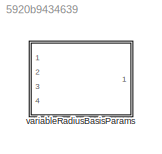
MODEL slx_5920b9434639
KIND library
CONFIG AbsTol = auto
CONFIG EnableMultiTasking = off
CONFIG FixedStep = auto
CONFIG MaxStep = auto
CONFIG MinStep = auto
CONFIG RelTol = 1e-3
CONFIG SampleTimeConstraint = Unconstrained
CONFIG SolverName = VariableStepAuto
CONFIG StartTime = 0.0
CONFIG StopTime = 10.0
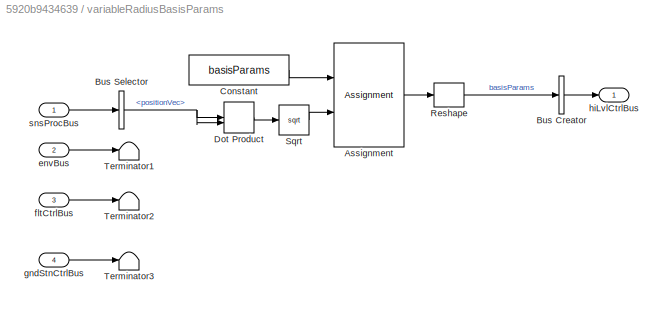
BLOCK [SubSystem] variableRadiusBasisParams
  InitFcn = initializeBussesFromBlock(gcb)
  LoadFcn = initializeBussesFromBlock(gcb)
  Ports = [4, 1]
  RequestExecContextInheritance = off
  StartFcn = initializeBussesFromBlock(gcb)
BLOCK [Assignment] variableRadiusBasisParams/Assignment
  DiagnosticForDimensions = Warning
  IndexOptions = Index vector (dialog)
  Indices = numel(basisParams)
  OutputSizes = 1
  Ports = [2, 1]
BLOCK [BusCreator] variableRadiusBasisParams/Bus Creator
  DisplayOption = bar
  InheritFromInputs = on
  Inputs = 1
  OutDataTypeStr = Bus: hiLvlCtrlBus
  Ports = [1, 1]
BLOCK [BusSelector] variableRadiusBasisParams/Bus Selector
  OutputSignals = positionVec
  Ports = [1, 1]
BLOCK [Constant] variableRadiusBasisParams/Constant
  Value = basisParams
BLOCK [DotProduct] variableRadiusBasisParams/Dot Product
  OutDataTypeStr = Inherit: Inherit via internal rule
BLOCK [Reshape] variableRadiusBasisParams/Reshape
  OutputDimensionality = Column vector (2-D)
  Ports = [1, 1]
BLOCK [Sqrt] variableRadiusBasisParams/Sqrt
BLOCK [Terminator] variableRadiusBasisParams/Terminator1
BLOCK [Terminator] variableRadiusBasisParams/Terminator2
BLOCK [Terminator] variableRadiusBasisParams/Terminator3
BLOCK [Inport] variableRadiusBasisParams/envBus
  OutDataTypeStr = Bus: envBus
  Port = 2
BLOCK [Inport] variableRadiusBasisParams/fltCtrlBus
  OutDataTypeStr = Bus: fltCtrlBus
  Port = 3
BLOCK [Inport] variableRadiusBasisParams/gndStnCtrlBus
  OutDataTypeStr = Bus: gndStnCtrlBus
  Port = 4
BLOCK [Outport] variableRadiusBasisParams/hiLvlCtrlBus
  OutDataTypeStr = Bus: hiLvlCtrlBus
  VectorParamsAs1DForOutWhenUnconnected = off
BLOCK [Inport] variableRadiusBasisParams/snsProcBus
  OutDataTypeStr = Bus: sensorsProcessingBus
LINE variableRadiusBasisParams/Assignment:1 -> variableRadiusBasisParams/Reshape:1
LINE variableRadiusBasisParams/Bus Creator:1 -> variableRadiusBasisParams/hiLvlCtrlBus:1
NET variableRadiusBasisParams/Bus Selector:1 -> variableRadiusBasisParams/Dot Product:1, variableRadiusBasisParams/Dot Product:2
LINE variableRadiusBasisParams/Constant:1 -> variableRadiusBasisParams/Assignment:1
LINE variableRadiusBasisParams/Dot Product:1 -> variableRadiusBasisParams/Sqrt:1
LINE variableRadiusBasisParams/Reshape:1 -> variableRadiusBasisParams/Bus Creator:1
LINE variableRadiusBasisParams/Sqrt:1 -> variableRadiusBasisParams/Assignment:2
LINE variableRadiusBasisParams/envBus:1 -> variableRadiusBasisParams/Terminator1:1
LINE variableRadiusBasisParams/fltCtrlBus:1 -> variableRadiusBasisParams/Terminator2:1
LINE variableRadiusBasisParams/gndStnCtrlBus:1 -> variableRadiusBasisParams/Terminator3:1
LINE variableRadiusBasisParams/snsProcBus:1 -> variableRadiusBasisParams/Bus Selector:1
note: NET lines group one-source signal fan-out (src -> all destinations, sorted); 1:1 wires keep LINE
